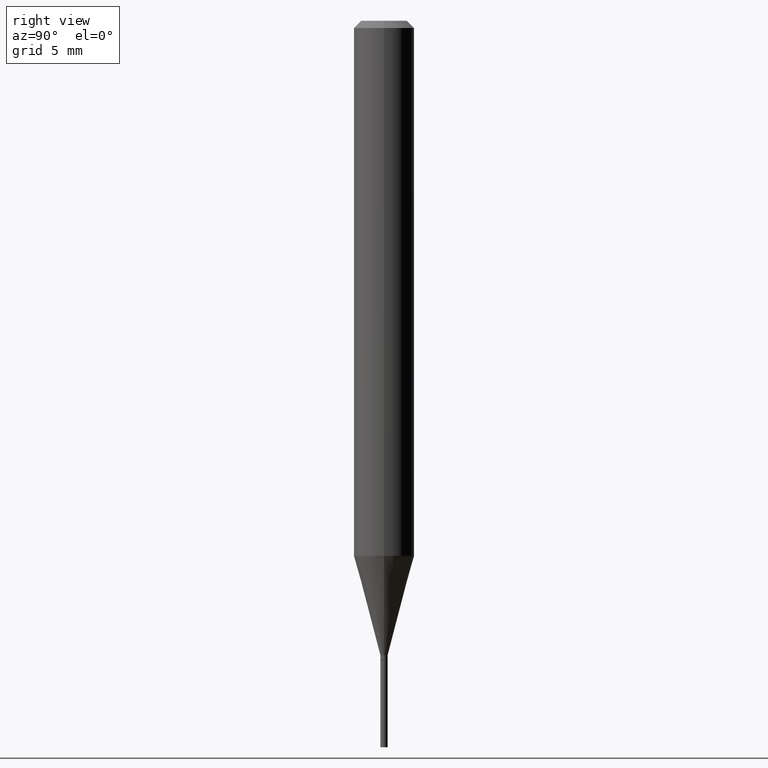
[diagram: clean part render]
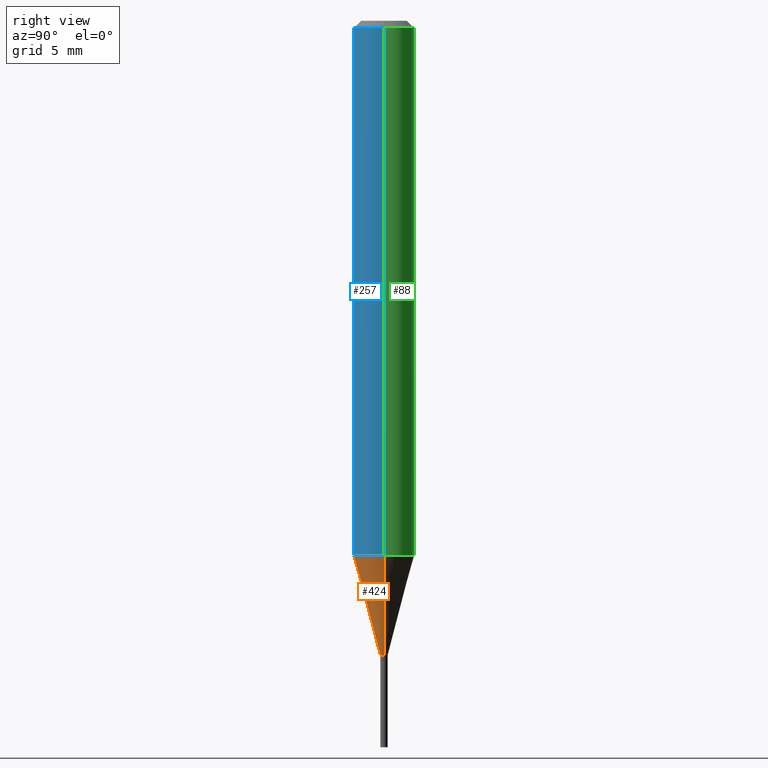
[diagram: same view with three faces highlighted in distinct colors, each labeled with its STEP entity id]
A machine part, right view with three faces highlighted in distinct colors.
Their STEP definitions:

[orange] entity #424 — the highlighted conical surface has half-angle 15 deg.
#28 = VERTEX_POINT ( 'NONE', #454 ) ;
#32 = DIRECTION ( 'NONE',  ( 1.000000000000000000, -6.982962677686213068E-15, 0.000000000000000000 ) ) ;
#47 = EDGE_CURVE ( 'NONE', #447, #414, #114, .T. ) ;
#52 = DIRECTION ( 'NONE',  ( 0.2588190451025214611, 1.565188264969620982E-15, 0.9659258262890679791 ) ) ;
#59 = CARTESIAN_POINT ( 'NONE',  ( -0.06249999999999999306, -3.413080127771193628E-15, -1.104737205583712356 ) ) ;
#64 = DIRECTION ( 'NONE',  ( -2.445468806185136597E-29, 3.491481338843145583E-15, 1.000000000000000000 ) ) ;
#73 = CARTESIAN_POINT ( 'NONE',  ( -0.007499999999999919925, -4.520549848702515199E-15, -1.310000000000000275 ) ) ;
#82 = CARTESIAN_POINT ( 'NONE',  ( 0.06249999999999999306, -4.293604504976646730E-15, -1.104737205583712356 ) ) ;
#96 = CARTESIAN_POINT ( 'NONE',  ( -0.007499999999999919925, -3.966814988236853427E-15, -1.310000000000000275 ) ) ;
#114 = CIRCLE ( 'NONE', #172, 0.06250000000000000000 ) ;
#115 = VERTEX_POINT ( 'NONE', #96 ) ;
#121 = ORIENTED_EDGE ( 'NONE', *, *, #129, .T. ) ;
#129 = EDGE_CURVE ( 'NONE', #115, #28, #202, .T. ) ;
#156 = ORIENTED_EDGE ( 'NONE', *, *, #47, .F. ) ;
#158 = LINE ( 'NONE', #401, #209 ) ;
#172 = AXIS2_PLACEMENT_3D ( 'NONE', #307, #64, #201 ) ;
#185 = ORIENTED_EDGE ( 'NONE', *, *, #343, .T. ) ;
#190 = DIRECTION ( 'NONE',  ( -2.445468806185136597E-29, 3.491481338843145583E-15, 1.000000000000000000 ) ) ;
#201 = DIRECTION ( 'NONE',  ( 1.000000000000000000, -6.982962677686262766E-15, 0.000000000000000000 ) ) ;
#202 = CIRCLE ( 'NONE', #285, 0.007499999999999919925 ) ;
#209 = VECTOR ( 'NONE', #52, 39.37007874015748143 ) ;
#221 = FACE_OUTER_BOUND ( 'NONE', #296, .T. ) ;
#240 = EDGE_CURVE ( 'NONE', #115, #447, #320, .T. ) ;
#247 = AXIS2_PLACEMENT_3D ( 'NONE', #334, #190, #444 ) ;
#254 = DIRECTION ( 'NONE',  ( -0.2588190451025214611, 5.211531920934550253E-15, 0.9659258262890679791 ) ) ;
#285 = AXIS2_PLACEMENT_3D ( 'NONE', #308, #331, #32 ) ;
#296 = EDGE_LOOP ( 'NONE', ( #339, #121, #185, #156 ) ) ;
#301 = VECTOR ( 'NONE', #254, 39.37007874015748143 ) ;
#307 = CARTESIAN_POINT ( 'NONE',  ( 2.701600375287104490E-29, -3.857169337621255061E-15, -1.104737205583712356 ) ) ;
#308 = CARTESIAN_POINT ( 'NONE',  ( 3.203564136102529457E-29, -4.573840553884521577E-15, -1.310000000000000275 ) ) ;
#320 = LINE ( 'NONE', #73, #301 ) ;
#331 = DIRECTION ( 'NONE',  ( -2.445468806185136597E-29, 3.491481338843145583E-15, 1.000000000000000000 ) ) ;
#334 = CARTESIAN_POINT ( 'NONE',  ( 3.203564136102529457E-29, -4.573840553884521577E-15, -1.310000000000000275 ) ) ;
#339 = ORIENTED_EDGE ( 'NONE', *, *, #240, .F. ) ;
#343 = EDGE_CURVE ( 'NONE', #28, #414, #158, .T. ) ;
#360 = CONICAL_SURFACE ( 'NONE', #247, 0.007499999999999919925, 0.2617993877991501850 ) ;
#401 = CARTESIAN_POINT ( 'NONE',  ( 0.007499999999999919925, -4.626212773967167473E-15, -1.310000000000000275 ) ) ;
#414 = VERTEX_POINT ( 'NONE', #82 ) ;
#424 = ADVANCED_FACE ( 'NONE', ( #221 ), #360, .T. ) ;
#444 = DIRECTION ( 'NONE',  ( 1.000000000000000000, -6.982962677686213068E-15, 0.000000000000000000 ) ) ;
#447 = VERTEX_POINT ( 'NONE', #59 ) ;
#454 = CARTESIAN_POINT ( 'NONE',  ( 0.007499999999999919925, -4.626212773967167473E-15, -1.310000000000000275 ) ) ;

[blue] entity #257 — the highlighted cylindrical surface (edge-blend (fillet) strip) has radius 1.5875 mm, axis along (-0, 0, 1).
#17 = ORIENTED_EDGE ( 'NONE', *, *, #107, .T. ) ;
#18 = CARTESIAN_POINT ( 'NONE',  ( -0.06250000000000000000, 4.440892098500626162E-16, -3.074334431409316114E-30 ) ) ;
#21 = DIRECTION ( 'NONE',  ( 1.000000000000000000, -6.982962677686266711E-15, 0.000000000000000000 ) ) ;
#34 = EDGE_CURVE ( 'NONE', #332, #359, #241, .T. ) ;
#43 = EDGE_LOOP ( 'NONE', ( #371, #362, #17, #357 ) ) ;
#47 = EDGE_CURVE ( 'NONE', #447, #414, #114, .T. ) ;
#59 = CARTESIAN_POINT ( 'NONE',  ( -0.06249999999999999306, -3.413080127771193628E-15, -1.104737205583712356 ) ) ;
#64 = DIRECTION ( 'NONE',  ( -2.445468806185136597E-29, 3.491481338843145583E-15, 1.000000000000000000 ) ) ;
#82 = CARTESIAN_POINT ( 'NONE',  ( 0.06249999999999999306, -4.293604504976646730E-15, -1.104737205583712356 ) ) ;
#89 = CARTESIAN_POINT ( 'NONE',  ( -0.06250000000000000000, -1.510681569001888651E-15, -0.01499999999999999944 ) ) ;
#104 = LINE ( 'NONE', #448, #280 ) ;
#107 = EDGE_CURVE ( 'NONE', #414, #359, #104, .T. ) ;
#112 = FACE_OUTER_BOUND ( 'NONE', #43, .T. ) ;
#114 = CIRCLE ( 'NONE', #172, 0.06250000000000000000 ) ;
#118 = CARTESIAN_POINT ( 'NONE',  ( 0.06250000000000000000, -4.888073874380388472E-16, -0.01499999999999999944 ) ) ;
#143 = DIRECTION ( 'NONE',  ( -2.445468806185136597E-29, 3.491481338843145583E-15, 1.000000000000000000 ) ) ;
#172 = AXIS2_PLACEMENT_3D ( 'NONE', #307, #64, #201 ) ;
#201 = DIRECTION ( 'NONE',  ( 1.000000000000000000, -6.982962677686262766E-15, 0.000000000000000000 ) ) ;
#212 = CARTESIAN_POINT ( 'NONE',  ( 0.000000000000000000, 0.000000000000000000, 0.000000000000000000 ) ) ;
#229 = LINE ( 'NONE', #18, #329 ) ;
#232 = AXIS2_PLACEMENT_3D ( 'NONE', #212, #143, #324 ) ;
#241 = CIRCLE ( 'NONE', #299, 0.06250000000000000000 ) ;
#257 = ADVANCED_FACE ( 'NONE', ( #112 ), #289, .T. ) ;
#273 = DIRECTION ( 'NONE',  ( -2.445468806185136877E-29, 3.491481338843145188E-15, 1.000000000000000000 ) ) ;
#280 = VECTOR ( 'NONE', #273, 39.37007874015748143 ) ;
#289 = CYLINDRICAL_SURFACE ( 'NONE', #232, 0.06250000000000000000 ) ;
#299 = AXIS2_PLACEMENT_3D ( 'NONE', #375, #344, #21 ) ;
#300 = DIRECTION ( 'NONE',  ( -2.445468806185136877E-29, 3.491481338843145188E-15, 1.000000000000000000 ) ) ;
#307 = CARTESIAN_POINT ( 'NONE',  ( 2.701600375287104490E-29, -3.857169337621255061E-15, -1.104737205583712356 ) ) ;
#324 = DIRECTION ( 'NONE',  ( 1.000000000000000000, -6.982962677686266711E-15, 4.876176775795935793E-29 ) ) ;
#329 = VECTOR ( 'NONE', #300, 39.37007874015748143 ) ;
#332 = VERTEX_POINT ( 'NONE', #89 ) ;
#344 = DIRECTION ( 'NONE',  ( -2.445468806185136597E-29, 3.491481338843145583E-15, 1.000000000000000000 ) ) ;
#357 = ORIENTED_EDGE ( 'NONE', *, *, #34, .F. ) ;
#359 = VERTEX_POINT ( 'NONE', #118 ) ;
#362 = ORIENTED_EDGE ( 'NONE', *, *, #47, .T. ) ;
#371 = ORIENTED_EDGE ( 'NONE', *, *, #381, .F. ) ;
#375 = CARTESIAN_POINT ( 'NONE',  ( 3.668203209277705088E-31, -5.237222008264718399E-17, -0.01499999999999999944 ) ) ;
#381 = EDGE_CURVE ( 'NONE', #447, #332, #229, .T. ) ;
#414 = VERTEX_POINT ( 'NONE', #82 ) ;
#447 = VERTEX_POINT ( 'NONE', #59 ) ;
#448 = CARTESIAN_POINT ( 'NONE',  ( 0.06250000000000000000, -4.364351673553916694E-16, 3.047610484872459871E-30 ) ) ;

[green] entity #88 — the highlighted cylindrical surface (edge-blend (fillet) strip) has radius 1.5875 mm, axis along (-0, 0, 1).
#18 = CARTESIAN_POINT ( 'NONE',  ( -0.06250000000000000000, 4.440892098500626162E-16, -3.074334431409316114E-30 ) ) ;
#22 = DIRECTION ( 'NONE',  ( -2.445468806185136597E-29, 3.491481338843145583E-15, 1.000000000000000000 ) ) ;
#35 = DIRECTION ( 'NONE',  ( -2.445468806185136597E-29, 3.491481338843145583E-15, 1.000000000000000000 ) ) ;
#36 = DIRECTION ( 'NONE',  ( 1.000000000000000000, -6.982962677686262766E-15, 0.000000000000000000 ) ) ;
#56 = CIRCLE ( 'NONE', #213, 0.06250000000000000000 ) ;
#59 = CARTESIAN_POINT ( 'NONE',  ( -0.06249999999999999306, -3.413080127771193628E-15, -1.104737205583712356 ) ) ;
#60 = ORIENTED_EDGE ( 'NONE', *, *, #153, .T. ) ;
#75 = ORIENTED_EDGE ( 'NONE', *, *, #107, .F. ) ;
#80 = ORIENTED_EDGE ( 'NONE', *, *, #124, .F. ) ;
#82 = CARTESIAN_POINT ( 'NONE',  ( 0.06249999999999999306, -4.293604504976646730E-15, -1.104737205583712356 ) ) ;
#83 = CIRCLE ( 'NONE', #348, 0.06250000000000000000 ) ;
#88 = ADVANCED_FACE ( 'NONE', ( #455 ), #168, .T. ) ;
#89 = CARTESIAN_POINT ( 'NONE',  ( -0.06250000000000000000, -1.510681569001888651E-15, -0.01499999999999999944 ) ) ;
#104 = LINE ( 'NONE', #448, #280 ) ;
#107 = EDGE_CURVE ( 'NONE', #414, #359, #104, .T. ) ;
#118 = CARTESIAN_POINT ( 'NONE',  ( 0.06250000000000000000, -4.888073874380388472E-16, -0.01499999999999999944 ) ) ;
#124 = EDGE_CURVE ( 'NONE', #359, #332, #56, .T. ) ;
#147 = ORIENTED_EDGE ( 'NONE', *, *, #381, .T. ) ;
#153 = EDGE_CURVE ( 'NONE', #414, #447, #83, .T. ) ;
#162 = DIRECTION ( 'NONE',  ( -2.445468806185136597E-29, 3.491481338843145583E-15, 1.000000000000000000 ) ) ;
#166 = DIRECTION ( 'NONE',  ( 1.000000000000000000, -6.982962677686266711E-15, 0.000000000000000000 ) ) ;
#168 = CYLINDRICAL_SURFACE ( 'NONE', #223, 0.06250000000000000000 ) ;
#213 = AXIS2_PLACEMENT_3D ( 'NONE', #237, #22, #166 ) ;
#215 = CARTESIAN_POINT ( 'NONE',  ( 2.701600375287104490E-29, -3.857169337621255061E-15, -1.104737205583712356 ) ) ;
#223 = AXIS2_PLACEMENT_3D ( 'NONE', #459, #162, #452 ) ;
#229 = LINE ( 'NONE', #18, #329 ) ;
#237 = CARTESIAN_POINT ( 'NONE',  ( 3.668203209277705088E-31, -5.237222008264718399E-17, -0.01499999999999999944 ) ) ;
#273 = DIRECTION ( 'NONE',  ( -2.445468806185136877E-29, 3.491481338843145188E-15, 1.000000000000000000 ) ) ;
#280 = VECTOR ( 'NONE', #273, 39.37007874015748143 ) ;
#294 = EDGE_LOOP ( 'NONE', ( #60, #147, #80, #75 ) ) ;
#300 = DIRECTION ( 'NONE',  ( -2.445468806185136877E-29, 3.491481338843145188E-15, 1.000000000000000000 ) ) ;
#329 = VECTOR ( 'NONE', #300, 39.37007874015748143 ) ;
#332 = VERTEX_POINT ( 'NONE', #89 ) ;
#348 = AXIS2_PLACEMENT_3D ( 'NONE', #215, #35, #36 ) ;
#359 = VERTEX_POINT ( 'NONE', #118 ) ;
#381 = EDGE_CURVE ( 'NONE', #447, #332, #229, .T. ) ;
#414 = VERTEX_POINT ( 'NONE', #82 ) ;
#447 = VERTEX_POINT ( 'NONE', #59 ) ;
#448 = CARTESIAN_POINT ( 'NONE',  ( 0.06250000000000000000, -4.364351673553916694E-16, 3.047610484872459871E-30 ) ) ;
#452 = DIRECTION ( 'NONE',  ( 1.000000000000000000, -6.982962677686266711E-15, 4.876176775795935793E-29 ) ) ;
#455 = FACE_OUTER_BOUND ( 'NONE', #294, .T. ) ;
#459 = CARTESIAN_POINT ( 'NONE',  ( 0.000000000000000000, 0.000000000000000000, 0.000000000000000000 ) ) ;